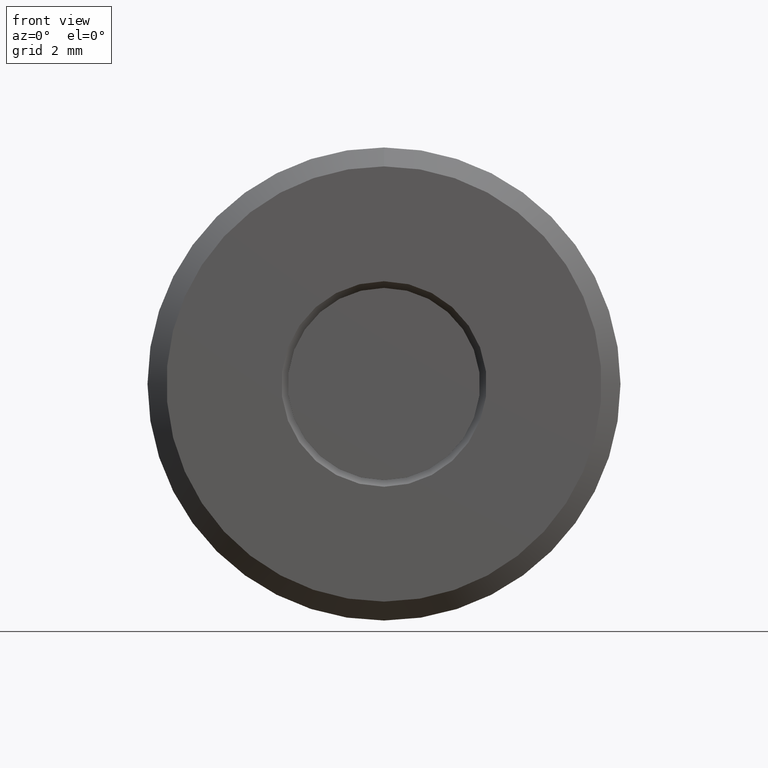
[diagram: clean part render]
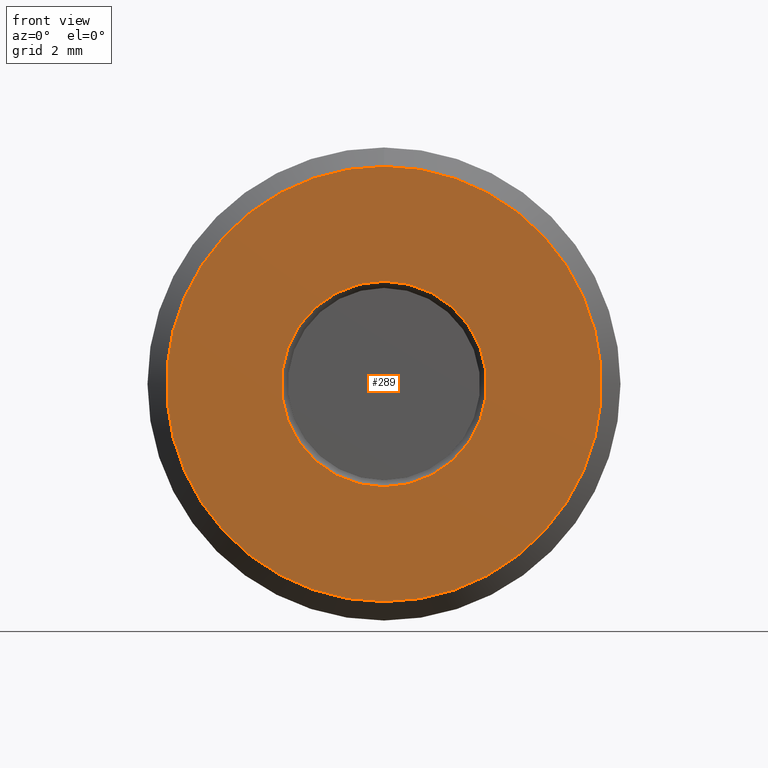
[diagram: same view with one face highlighted and labeled with its STEP entity id]
A machine part, front view. The second image highlights one B-rep face of the part: STEP entity #289.
In plain terms, the highlighted planar face has unit normal (0, -1, 0).
Its self-contained STEP definition (entity closure, byte-faithful):
#5 = FACE_OUTER_BOUND ( 'NONE', #548, .T. ) ;
#21 = AXIS2_PLACEMENT_3D ( 'NONE', #62, #125, #288 ) ;
#24 = ORIENTED_EDGE ( 'NONE', *, *, #307, .F. ) ;
#39 = AXIS2_PLACEMENT_3D ( 'NONE', #539, #331, #507 ) ;
#59 = AXIS2_PLACEMENT_3D ( 'NONE', #236, #533, #167 ) ;
#62 = CARTESIAN_POINT ( 'NONE',  ( 0.0000000000000000000, -5.082755344596973000E-018, 0.0000000000000000000 ) ) ;
#82 = ORIENTED_EDGE ( 'NONE', *, *, #321, .T. ) ;
#85 = CIRCLE ( 'NONE', #59, 0.2300000000000000100 ) ;
#125 = DIRECTION ( 'NONE',  ( -0.0000000000000000000, 1.000000000000000000, -0.0000000000000000000 ) ) ;
#167 = DIRECTION ( 'NONE',  ( 0.0000000000000000000, 0.0000000000000000000, 1.000000000000000000 ) ) ;
#222 = VERTEX_POINT ( 'NONE', #509 ) ;
#236 = CARTESIAN_POINT ( 'NONE',  ( 0.0000000000000000000, -2.253931676032620700E-017, 0.0000000000000000000 ) ) ;
#288 = DIRECTION ( 'NONE',  ( 0.0000000000000000000, 0.0000000000000000000, 1.000000000000000000 ) ) ;
#289 = ADVANCED_FACE ( 'NONE', ( #536, #5 ), #475, .T. ) ;
#307 = EDGE_CURVE ( 'NONE', #222, #222, #85, .T. ) ;
#321 = EDGE_CURVE ( 'NONE', #564, #564, #452, .T. ) ;
#331 = DIRECTION ( 'NONE',  ( 0.0000000000000000000, -1.000000000000000000, 0.0000000000000000000 ) ) ;
#452 = CIRCLE ( 'NONE', #21, 0.1086335678118649800 ) ;
#475 = PLANE ( 'NONE',  #39 ) ;
#504 = CARTESIAN_POINT ( 'NONE',  ( 0.0000000000000000000, -5.082755344596973000E-018, 0.1086335678118649800 ) ) ;
#507 = DIRECTION ( 'NONE',  ( 0.0000000000000000000, -0.0000000000000000000, -1.000000000000000000 ) ) ;
#509 = CARTESIAN_POINT ( 'NONE',  ( 0.0000000000000000000, -2.253931676032620700E-017, 0.2300000000000000100 ) ) ;
#533 = DIRECTION ( 'NONE',  ( -0.0000000000000000000, 1.000000000000000000, -0.0000000000000000000 ) ) ;
#536 = FACE_BOUND ( 'NONE', #552, .T. ) ;
#539 = CARTESIAN_POINT ( 'NONE',  ( -0.1086335678118649800, -1.381103605246159000E-017, 0.0000000000000000000 ) ) ;
#548 = EDGE_LOOP ( 'NONE', ( #24 ) ) ;
#552 = EDGE_LOOP ( 'NONE', ( #82 ) ) ;
#564 = VERTEX_POINT ( 'NONE', #504 ) ;